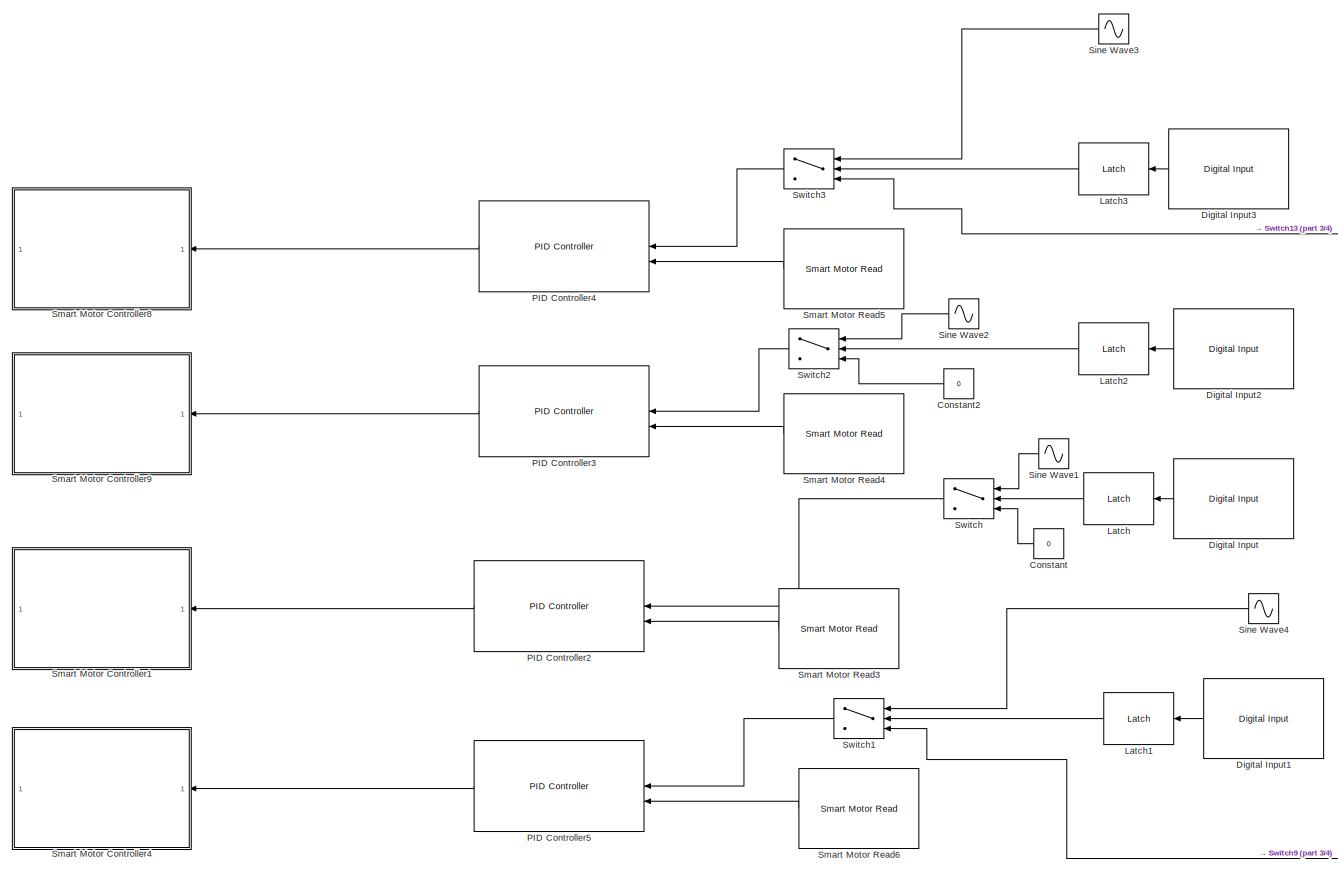
[diagram: root canvas - part 1/4, center side, full height]
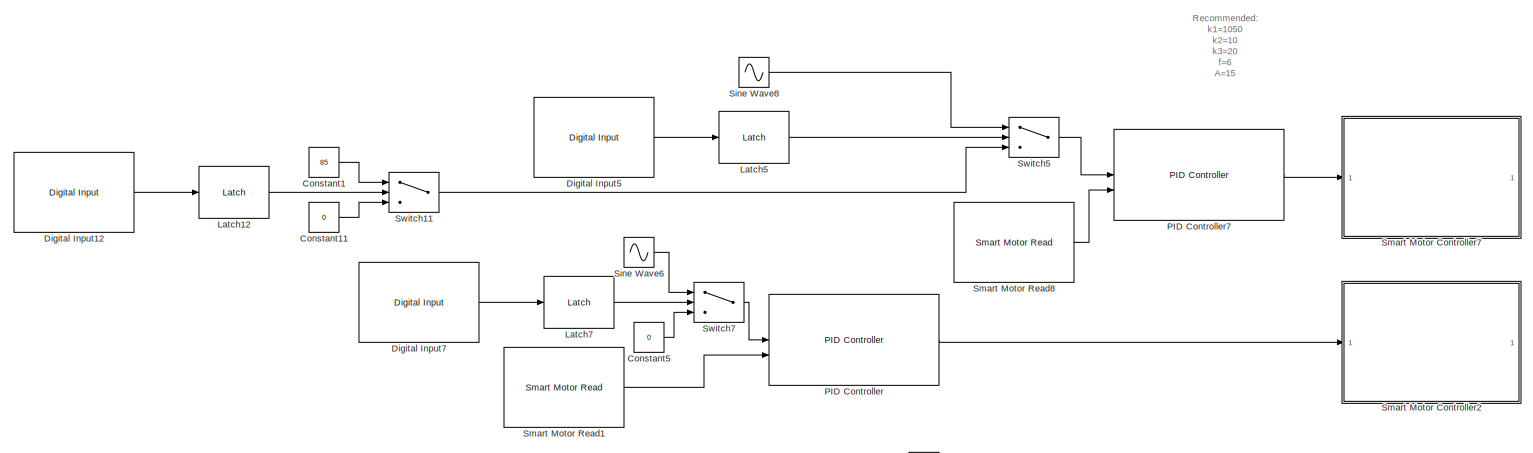
[diagram: root canvas - part 2/4, top left region]
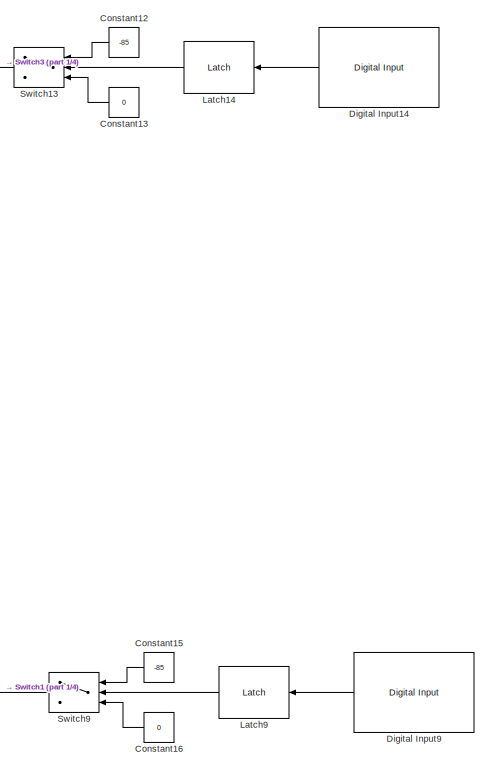
[diagram: root canvas - part 3/4, right side, full height]
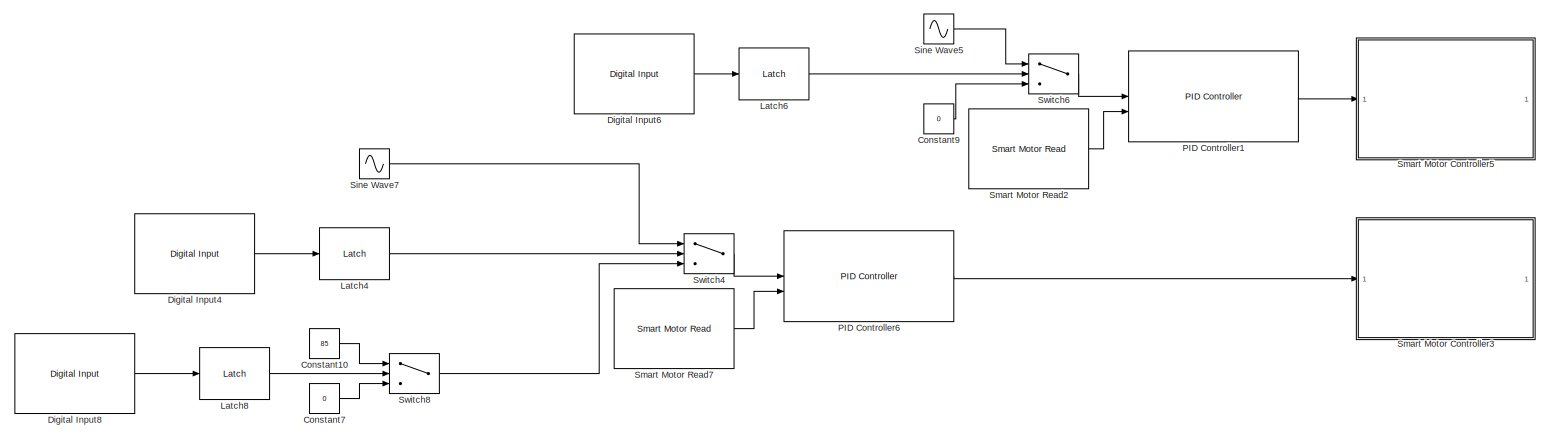
[diagram: root canvas - part 4/4, bottom left region]
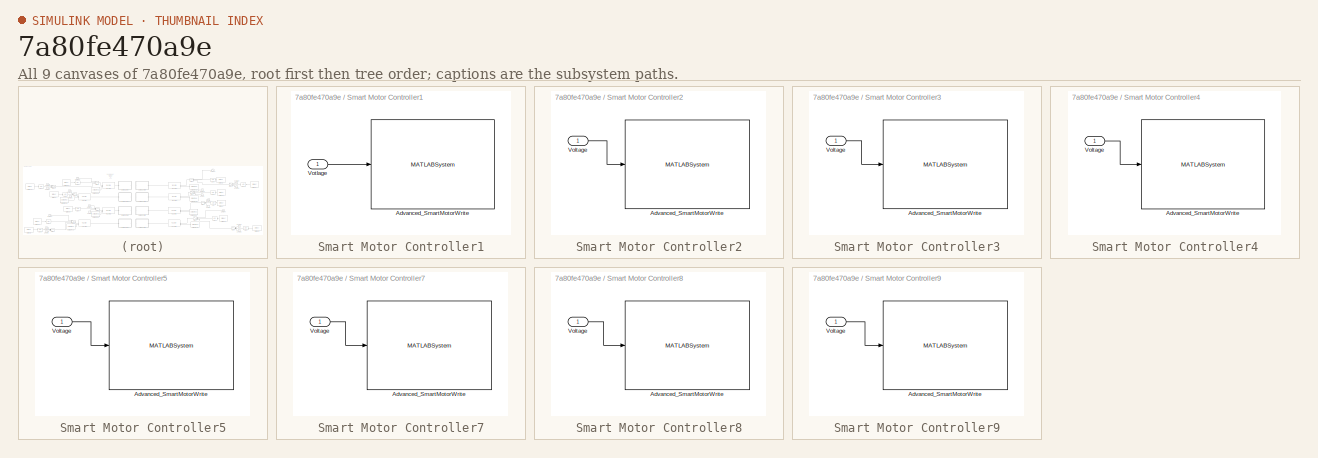
[diagram: thumbnail index - all 9 canvases of the model, root first then tree order]
MODEL slx_7a80fe470a9e
KIND model
CONFIG AbsTol = auto
CONFIG EnableMultiTasking = off
CONFIG FixedStep = auto
CONFIG MaxStep = auto
CONFIG MinStep = auto
CONFIG RelTol = 1e-3
CONFIG SampleTimeConstraint = Unconstrained
CONFIG SolverName = FixedStepAuto
CONFIG StartTime = 0.0
CONFIG StopTime = 10
BLOCK [Constant] Constant
  NameLocation = top
  Value = 0
BLOCK [Constant] Constant1
  Value = 85
BLOCK [Constant] Constant10
  Value = 85
BLOCK [Constant] Constant11
  Value = 0
BLOCK [Constant] Constant12
  NameLocation = top
  Value = -85
BLOCK [Constant] Constant13
  NameLocation = top
  Value = 0
BLOCK [Constant] Constant15
  NameLocation = top
  Value = -85
BLOCK [Constant] Constant16
  NameLocation = top
  Value = 0
BLOCK [Constant] Constant2
  NameLocation = top
  Value = 0
BLOCK [Constant] Constant5
  Value = 0
BLOCK [Constant] Constant7
  Value = 0
BLOCK [Constant] Constant9
  Value = 0
BLOCK [Reference] Digital Input  REF=vexv5lib/Sensors/Digital Input
  NameLocation = top
  SourceBlock = vexv5lib/Sensors/Digital Input
  SourceType = vexv5.DigitalInput
BLOCK [Reference] Digital Input1  REF=vexv5lib/Sensors/Digital Input
  NameLocation = top
  SourceBlock = vexv5lib/Sensors/Digital Input
  SourceType = vexv5.DigitalInput
BLOCK [Reference] Digital Input12  REF=vexv5lib/Sensors/Digital Input
  SourceBlock = vexv5lib/Sensors/Digital Input
  SourceType = vexv5.DigitalInput
BLOCK [Reference] Digital Input14  REF=vexv5lib/Sensors/Digital Input
  NameLocation = top
  SourceBlock = vexv5lib/Sensors/Digital Input
  SourceType = vexv5.DigitalInput
BLOCK [Reference] Digital Input2  REF=vexv5lib/Sensors/Digital Input
  NameLocation = top
  SourceBlock = vexv5lib/Sensors/Digital Input
  SourceType = vexv5.DigitalInput
BLOCK [Reference] Digital Input3  REF=vexv5lib/Sensors/Digital Input
  NameLocation = top
  SourceBlock = vexv5lib/Sensors/Digital Input
  SourceType = vexv5.DigitalInput
BLOCK [Reference] Digital Input4  REF=vexv5lib/Sensors/Digital Input
  SourceBlock = vexv5lib/Sensors/Digital Input
  SourceType = vexv5.DigitalInput
BLOCK [Reference] Digital Input5  REF=vexv5lib/Sensors/Digital Input
  SourceBlock = vexv5lib/Sensors/Digital Input
  SourceType = vexv5.DigitalInput
BLOCK [Reference] Digital Input6  REF=vexv5lib/Sensors/Digital Input
  SourceBlock = vexv5lib/Sensors/Digital Input
  SourceType = vexv5.DigitalInput
BLOCK [Reference] Digital Input7  REF=vexv5lib/Sensors/Digital Input
  SourceBlock = vexv5lib/Sensors/Digital Input
  SourceType = vexv5.DigitalInput
BLOCK [Reference] Digital Input8  REF=vexv5lib/Sensors/Digital Input
  SourceBlock = vexv5lib/Sensors/Digital Input
  SourceType = vexv5.DigitalInput
BLOCK [Reference] Digital Input9  REF=vexv5lib/Sensors/Digital Input
  NameLocation = top
  SourceBlock = vexv5lib/Sensors/Digital Input
  SourceType = vexv5.DigitalInput
BLOCK [Reference] Latch  REF=vexcommonlib/Latch
  LibrarySourceBlock = vexv5lib/Utilities/Latch
  NameLocation = top
  SourceBlock = vexcommonlib/Latch
  SourceType = Latch
BLOCK [Reference] Latch1  REF=vexcommonlib/Latch
  LibrarySourceBlock = vexv5lib/Utilities/Latch
  NameLocation = top
  SourceBlock = vexcommonlib/Latch
  SourceType = Latch
BLOCK [Reference] Latch12  REF=vexcommonlib/Latch
  LibrarySourceBlock = vexv5lib/Utilities/Latch
  SourceBlock = vexcommonlib/Latch
  SourceType = Latch
BLOCK [Reference] Latch14  REF=vexcommonlib/Latch
  LibrarySourceBlock = vexv5lib/Utilities/Latch
  NameLocation = top
  SourceBlock = vexcommonlib/Latch
  SourceType = Latch
BLOCK [Reference] Latch2  REF=vexcommonlib/Latch
  LibrarySourceBlock = vexv5lib/Utilities/Latch
  NameLocation = top
  SourceBlock = vexcommonlib/Latch
  SourceType = Latch
BLOCK [Reference] Latch3  REF=vexcommonlib/Latch
  LibrarySourceBlock = vexv5lib/Utilities/Latch
  NameLocation = top
  SourceBlock = vexcommonlib/Latch
  SourceType = Latch
BLOCK [Reference] Latch4  REF=vexcommonlib/Latch
  LibrarySourceBlock = vexv5lib/Utilities/Latch
  SourceBlock = vexcommonlib/Latch
  SourceType = Latch
BLOCK [Reference] Latch5  REF=vexcommonlib/Latch
  LibrarySourceBlock = vexv5lib/Utilities/Latch
  SourceBlock = vexcommonlib/Latch
  SourceType = Latch
BLOCK [Reference] Latch6  REF=vexcommonlib/Latch
  LibrarySourceBlock = vexv5lib/Utilities/Latch
  SourceBlock = vexcommonlib/Latch
  SourceType = Latch
BLOCK [Reference] Latch7  REF=vexcommonlib/Latch
  LibrarySourceBlock = vexv5lib/Utilities/Latch
  SourceBlock = vexcommonlib/Latch
  SourceType = Latch
BLOCK [Reference] Latch8  REF=vexcommonlib/Latch
  LibrarySourceBlock = vexv5lib/Utilities/Latch
  SourceBlock = vexcommonlib/Latch
  SourceType = Latch
BLOCK [Reference] Latch9  REF=vexcommonlib/Latch
  LibrarySourceBlock = vexv5lib/Utilities/Latch
  NameLocation = top
  SourceBlock = vexcommonlib/Latch
  SourceType = Latch
BLOCK [Reference] PID Controller  REF=Vex_V5_Simulink_Expansion/Core Blocks/PID Controller
  SourceBlock = Vex_V5_Simulink_Expansion/Core Blocks/PID Controller
  SourceType = PID Controller
BLOCK [Reference] PID Controller1  REF=Vex_V5_Simulink_Expansion/Core Blocks/PID Controller
  SourceBlock = Vex_V5_Simulink_Expansion/Core Blocks/PID Controller
  SourceType = PID Controller
BLOCK [Reference] PID Controller2  REF=Vex_V5_Simulink_Expansion/Core Blocks/PID Controller
  NameLocation = top
  SourceBlock = Vex_V5_Simulink_Expansion/Core Blocks/PID Controller
  SourceType = PID Controller
BLOCK [Reference] PID Controller3  REF=Vex_V5_Simulink_Expansion/Core Blocks/PID Controller
  NameLocation = top
  SourceBlock = Vex_V5_Simulink_Expansion/Core Blocks/PID Controller
  SourceType = PID Controller
BLOCK [Reference] PID Controller4  REF=Vex_V5_Simulink_Expansion/Core Blocks/PID Controller
  NameLocation = top
  SourceBlock = Vex_V5_Simulink_Expansion/Core Blocks/PID Controller
  SourceType = PID Controller
BLOCK [Reference] PID Controller5  REF=Vex_V5_Simulink_Expansion/Core Blocks/PID Controller
  NameLocation = top
  SourceBlock = Vex_V5_Simulink_Expansion/Core Blocks/PID Controller
  SourceType = PID Controller
BLOCK [Reference] PID Controller6  REF=Vex_V5_Simulink_Expansion/Core Blocks/PID Controller
  SourceBlock = Vex_V5_Simulink_Expansion/Core Blocks/PID Controller
  SourceType = PID Controller
BLOCK [Reference] PID Controller7  REF=Vex_V5_Simulink_Expansion/Core Blocks/PID Controller
  SourceBlock = Vex_V5_Simulink_Expansion/Core Blocks/PID Controller
  SourceType = PID Controller
BLOCK [Sin] Sine Wave1
  Amplitude = A
  Bias = A/2
  Frequency = f
  NameLocation = top
  Phase = -f/4
  SampleTime = 0.001
BLOCK [Sin] Sine Wave2
  Amplitude = A
  Bias = A/2
  Frequency = f
  NameLocation = top
  Phase = -f/4
  SampleTime = 0.001
BLOCK [Sin] Sine Wave3
  Amplitude = B
  Bias = -85
  Frequency = f
  NameLocation = top
  Phase = -f/2
  SampleTime = 0.001
BLOCK [Sin] Sine Wave4
  Amplitude = -B
  Bias = -85
  Frequency = f
  NameLocation = top
  Phase = -f/2
  SampleTime = 0.001
BLOCK [Sin] Sine Wave5
  Amplitude = -A
  Bias = -A/2
  Frequency = f
  Phase = -3*f/4
  SampleTime = 0.001
BLOCK [Sin] Sine Wave6
  Amplitude = A
  Bias = A/2
  Frequency = f
  Phase = -f/4
  SampleTime = 0.001
BLOCK [Sin] Sine Wave7
  Amplitude = B
  Bias = 85
  Frequency = f
  SampleTime = 0.001
BLOCK [Sin] Sine Wave8
  Amplitude = B
  Bias = 85
  Frequency = f
  Phase = -f/2
  SampleTime = 0.001
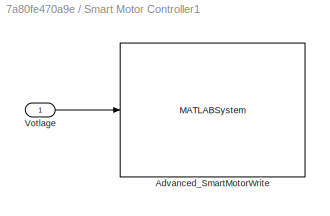
BLOCK [SubSystem] Smart Motor Controller1
  AncestorBlock = Vex_V5_Simulink_Expansion/Core Blocks/Smart Motor Controller
BLOCK [MATLABSystem] Smart Motor Controller1/Advanced_SmartMotorWrite
  MaskDisplay = color('white');\nplot([100,100,100,100]*1,[100,100,100,100]*1);\nplot([100,100,100,100]*0,[100,100,100,100]*0);\ncolor('black');\nimage(fullfile(codertarget.vexv5.internal.getSpPkgRootDir, 'resources', 'vex-v5-motor2.png'),'center');\npatch([0.8, 0.8, 1, 1], [0.82857, 1, 1, 0.82857], [1, 1, 1]);\ncolor('blue');\ntext(99, 92, 'VEX V5 ', 'horizontalAlignment', 'right');\ncolor('black');\ntext(62,12,'Port: 12...<+72ch>
  MaskType = Advanced_SmartMotorWrite
  MotorBrakeMode = Coast
  OperationMode = Advanced Control
  System = Advanced_SmartMotorWrite
  motorPort = 12
  scaleFactor = 36:1
BLOCK [Inport] Smart Motor Controller1/Votlage
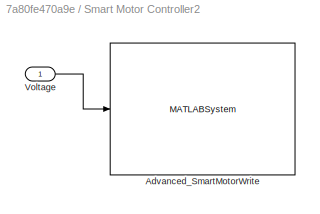
BLOCK [SubSystem] Smart Motor Controller2
  AncestorBlock = Vex_V5_Simulink_Expansion/Core Blocks/Smart Motor Controller
  NameLocation = top
BLOCK [MATLABSystem] Smart Motor Controller2/Advanced_SmartMotorWrite
  MaskDisplay = color('white');\nplot([100,100,100,100]*1,[100,100,100,100]*1);\nplot([100,100,100,100]*0,[100,100,100,100]*0);\ncolor('black');\nimage(fullfile(codertarget.vexv5.internal.getSpPkgRootDir, 'resources', 'vex-v5-motor2.png'),'center');\npatch([0.8, 0.8, 1, 1], [0.82857, 1, 1, 0.82857], [1, 1, 1]);\ncolor('blue');\ntext(99, 92, 'VEX V5 ', 'horizontalAlignment', 'right');\ncolor('black');\ntext(62,12,'Port: 9'...<+71ch>
  MaskType = Advanced_SmartMotorWrite
  MotorBrakeMode = Coast
  OperationMode = Advanced Control
  System = Advanced_SmartMotorWrite
  motorPort = 9
  scaleFactor = 36:1
BLOCK [Inport] Smart Motor Controller2/Voltage
BLOCK [SubSystem] Smart Motor Controller3
  AncestorBlock = Vex_V5_Simulink_Expansion/Core Blocks/Smart Motor Controller
  NameLocation = top
BLOCK [MATLABSystem] Smart Motor Controller3/Advanced_SmartMotorWrite
  MaskDisplay = color('white');\nplot([100,100,100,100]*1,[100,100,100,100]*1);\nplot([100,100,100,100]*0,[100,100,100,100]*0);\ncolor('black');\nimage(fullfile(codertarget.vexv5.internal.getSpPkgRootDir, 'resources', 'vex-v5-motor2.png'),'center');\npatch([0.8, 0.8, 1, 1], [0.82857, 1, 1, 0.82857], [1, 1, 1]);\ncolor('blue');\ntext(99, 92, 'VEX V5 ', 'horizontalAlignment', 'right');\ncolor('black');\ntext(62,12,'Port: 1'...<+71ch>
  MaskType = Advanced_SmartMotorWrite
  MotorBrakeMode = Coast
  OperationMode = Advanced Control
  System = Advanced_SmartMotorWrite
  motorPort = 1
  scaleFactor = 36:1
BLOCK [Inport] Smart Motor Controller3/Voltage
BLOCK [SubSystem] Smart Motor Controller4
  AncestorBlock = Vex_V5_Simulink_Expansion/Core Blocks/Smart Motor Controller
BLOCK [MATLABSystem] Smart Motor Controller4/Advanced_SmartMotorWrite
  MaskDisplay = color('white');\nplot([100,100,100,100]*1,[100,100,100,100]*1);\nplot([100,100,100,100]*0,[100,100,100,100]*0);\ncolor('black');\nimage(fullfile(codertarget.vexv5.internal.getSpPkgRootDir, 'resources', 'vex-v5-motor2.png'),'center');\npatch([0.8, 0.8, 1, 1], [0.82857, 1, 1, 0.82857], [1, 1, 1]);\ncolor('blue');\ntext(99, 92, 'VEX V5 ', 'horizontalAlignment', 'right');\ncolor('black');\ntext(62,12,'Port: 11...<+72ch>
  MaskType = Advanced_SmartMotorWrite
  MotorBrakeMode = Coast
  OperationMode = Advanced Control
  System = Advanced_SmartMotorWrite
  motorPort = 11
  scaleFactor = 36:1
BLOCK [Inport] Smart Motor Controller4/Voltage
BLOCK [SubSystem] Smart Motor Controller5
  AncestorBlock = Vex_V5_Simulink_Expansion/Core Blocks/Smart Motor Controller
  NameLocation = top
BLOCK [MATLABSystem] Smart Motor Controller5/Advanced_SmartMotorWrite
  MaskDisplay = color('white');\nplot([100,100,100,100]*1,[100,100,100,100]*1);\nplot([100,100,100,100]*0,[100,100,100,100]*0);\ncolor('black');\nimage(fullfile(codertarget.vexv5.internal.getSpPkgRootDir, 'resources', 'vex-v5-motor2.png'),'center');\npatch([0.8, 0.8, 1, 1], [0.82857, 1, 1, 0.82857], [1, 1, 1]);\ncolor('blue');\ntext(99, 92, 'VEX V5 ', 'horizontalAlignment', 'right');\ncolor('black');\ntext(62,12,'Port: 2'...<+71ch>
  MaskType = Advanced_SmartMotorWrite
  MotorBrakeMode = Coast
  OperationMode = Advanced Control
  System = Advanced_SmartMotorWrite
  motorPort = 2
  scaleFactor = 36:1
BLOCK [Inport] Smart Motor Controller5/Voltage
BLOCK [SubSystem] Smart Motor Controller7
  AncestorBlock = Vex_V5_Simulink_Expansion/Core Blocks/Smart Motor Controller
  NameLocation = top
BLOCK [MATLABSystem] Smart Motor Controller7/Advanced_SmartMotorWrite
  MaskDisplay = color('white');\nplot([100,100,100,100]*1,[100,100,100,100]*1);\nplot([100,100,100,100]*0,[100,100,100,100]*0);\ncolor('black');\nimage(fullfile(codertarget.vexv5.internal.getSpPkgRootDir, 'resources', 'vex-v5-motor2.png'),'center');\npatch([0.8, 0.8, 1, 1], [0.82857, 1, 1, 0.82857], [1, 1, 1]);\ncolor('blue');\ntext(99, 92, 'VEX V5 ', 'horizontalAlignment', 'right');\ncolor('black');\ntext(62,12,'Port: 10...<+72ch>
  MaskType = Advanced_SmartMotorWrite
  MotorBrakeMode = Coast
  OperationMode = Advanced Control
  System = Advanced_SmartMotorWrite
  motorPort = 10
  scaleFactor = 36:1
BLOCK [Inport] Smart Motor Controller7/Voltage
BLOCK [SubSystem] Smart Motor Controller8
  AncestorBlock = Vex_V5_Simulink_Expansion/Core Blocks/Smart Motor Controller
BLOCK [MATLABSystem] Smart Motor Controller8/Advanced_SmartMotorWrite
  MaskDisplay = color('white');\nplot([100,100,100,100]*1,[100,100,100,100]*1);\nplot([100,100,100,100]*0,[100,100,100,100]*0);\ncolor('black');\nimage(fullfile(codertarget.vexv5.internal.getSpPkgRootDir, 'resources', 'vex-v5-motor2.png'),'center');\npatch([0.8, 0.8, 1, 1], [0.82857, 1, 1, 0.82857], [1, 1, 1]);\ncolor('blue');\ntext(99, 92, 'VEX V5 ', 'horizontalAlignment', 'right');\ncolor('black');\ntext(62,12,'Port: 20...<+72ch>
  MaskType = Advanced_SmartMotorWrite
  MotorBrakeMode = Coast
  OperationMode = Advanced Control
  System = Advanced_SmartMotorWrite
  motorPort = 20
  scaleFactor = 36:1
BLOCK [Inport] Smart Motor Controller8/Voltage
BLOCK [SubSystem] Smart Motor Controller9
  AncestorBlock = Vex_V5_Simulink_Expansion/Core Blocks/Smart Motor Controller
BLOCK [MATLABSystem] Smart Motor Controller9/Advanced_SmartMotorWrite
  MaskDisplay = color('white');\nplot([100,100,100,100]*1,[100,100,100,100]*1);\nplot([100,100,100,100]*0,[100,100,100,100]*0);\ncolor('black');\nimage(fullfile(codertarget.vexv5.internal.getSpPkgRootDir, 'resources', 'vex-v5-motor2.png'),'center');\npatch([0.8, 0.8, 1, 1], [0.82857, 1, 1, 0.82857], [1, 1, 1]);\ncolor('blue');\ntext(99, 92, 'VEX V5 ', 'horizontalAlignment', 'right');\ncolor('black');\ntext(62,12,'Port: 19...<+72ch>
  MaskType = Advanced_SmartMotorWrite
  MotorBrakeMode = Coast
  OperationMode = Advanced Control
  System = Advanced_SmartMotorWrite
  motorPort = 19
  scaleFactor = 36:1
BLOCK [Inport] Smart Motor Controller9/Voltage
BLOCK [Reference] Smart Motor Read1  REF=vexv5lib/Sensors/Smart Motor Read
  SourceBlock = vexv5lib/Sensors/Smart Motor Read
  SourceType = vexv5.SmartMotorRead
BLOCK [Reference] Smart Motor Read2  REF=vexv5lib/Sensors/Smart Motor Read
  SourceBlock = vexv5lib/Sensors/Smart Motor Read
  SourceType = vexv5.SmartMotorRead
BLOCK [Reference] Smart Motor Read3  REF=vexv5lib/Sensors/Smart Motor Read
  NameLocation = top
  SourceBlock = vexv5lib/Sensors/Smart Motor Read
  SourceType = vexv5.SmartMotorRead
BLOCK [Reference] Smart Motor Read4  REF=vexv5lib/Sensors/Smart Motor Read
  NameLocation = top
  SourceBlock = vexv5lib/Sensors/Smart Motor Read
  SourceType = vexv5.SmartMotorRead
BLOCK [Reference] Smart Motor Read5  REF=vexv5lib/Sensors/Smart Motor Read
  NameLocation = top
  SourceBlock = vexv5lib/Sensors/Smart Motor Read
  SourceType = vexv5.SmartMotorRead
BLOCK [Reference] Smart Motor Read6  REF=vexv5lib/Sensors/Smart Motor Read
  NameLocation = top
  SourceBlock = vexv5lib/Sensors/Smart Motor Read
  SourceType = vexv5.SmartMotorRead
BLOCK [Reference] Smart Motor Read7  REF=vexv5lib/Sensors/Smart Motor Read
  SourceBlock = vexv5lib/Sensors/Smart Motor Read
  SourceType = vexv5.SmartMotorRead
BLOCK [Reference] Smart Motor Read8  REF=vexv5lib/Sensors/Smart Motor Read
  SourceBlock = vexv5lib/Sensors/Smart Motor Read
  SourceType = vexv5.SmartMotorRead
BLOCK [Switch] Switch
  Criteria = u2 > Threshold
  InputSameDT = off
  NameLocation = top
  SaturateOnIntegerOverflow = off
BLOCK [Switch] Switch1
  Criteria = u2 ~= 0
  InputSameDT = off
  NameLocation = top
  SaturateOnIntegerOverflow = off
BLOCK [Switch] Switch11
  Criteria = u2 > Threshold
  InputSameDT = off
  SaturateOnIntegerOverflow = off
BLOCK [Switch] Switch13
  Criteria = u2 > Threshold
  InputSameDT = off
  NameLocation = top
  SaturateOnIntegerOverflow = off
BLOCK [Switch] Switch2
  Criteria = u2 > Threshold
  InputSameDT = off
  NameLocation = top
  SaturateOnIntegerOverflow = off
BLOCK [Switch] Switch3
  Criteria = u2 > Threshold
  InputSameDT = off
  NameLocation = top
  SaturateOnIntegerOverflow = off
BLOCK [Switch] Switch4
  Criteria = u2 ~= 0
  InputSameDT = off
  SaturateOnIntegerOverflow = off
BLOCK [Switch] Switch5
  Criteria = u2 ~= 0
  InputSameDT = off
  SaturateOnIntegerOverflow = off
BLOCK [Switch] Switch6
  Criteria = u2 > Threshold
  InputSameDT = off
  SaturateOnIntegerOverflow = off
BLOCK [Switch] Switch7
  Criteria = u2 > Threshold
  InputSameDT = off
  SaturateOnIntegerOverflow = off
BLOCK [Switch] Switch8
  Criteria = u2 > Threshold
  InputSameDT = off
  SaturateOnIntegerOverflow = off
BLOCK [Switch] Switch9
  Criteria = u2 > Threshold
  InputSameDT = off
  NameLocation = top
  SaturateOnIntegerOverflow = off
ANNOTATION (root): Recommended: k1=1050 k2=10 k3=20 f=6 A=15 B=15
LINE Constant10:1 -> Switch8:1
LINE Constant11:1 -> Switch11:3
LINE Constant12:1 -> Switch13:1
LINE Constant13:1 -> Switch13:3
LINE Constant15:1 -> Switch9:1
LINE Constant16:1 -> Switch9:3
LINE Constant1:1 -> Switch11:1
LINE Constant2:1 -> Switch2:3
LINE Constant5:1 -> Switch7:3
LINE Constant7:1 -> Switch8:3
LINE Constant9:1 -> Switch6:3
LINE Constant:1 -> Switch:3
LINE Digital Input12:1 -> Latch12:1
LINE Digital Input14:1 -> Latch14:1
LINE Digital Input1:1 -> Latch1:1
LINE Digital Input2:1 -> Latch2:1
LINE Digital Input3:1 -> Latch3:1
LINE Digital Input4:1 -> Latch4:1
LINE Digital Input5:1 -> Latch5:1
LINE Digital Input6:1 -> Latch6:1
LINE Digital Input7:1 -> Latch7:1
LINE Digital Input8:1 -> Latch8:1
LINE Digital Input9:1 -> Latch9:1
LINE Digital Input:1 -> Latch:1
LINE Latch12:1 -> Switch11:2
LINE Latch14:1 -> Switch13:2
LINE Latch1:1 -> Switch1:2
LINE Latch2:1 -> Switch2:2
LINE Latch3:1 -> Switch3:2
LINE Latch4:1 -> Switch4:2
LINE Latch5:1 -> Switch5:2
LINE Latch6:1 -> Switch6:2
LINE Latch7:1 -> Switch7:2
LINE Latch8:1 -> Switch8:2
LINE Latch9:1 -> Switch9:2
LINE Latch:1 -> Switch:2
LINE PID Controller1:1 -> Smart Motor Controller5:1
LINE PID Controller2:1 -> Smart Motor Controller1:1
LINE PID Controller3:1 -> Smart Motor Controller9:1
LINE PID Controller4:1 -> Smart Motor Controller8:1
LINE PID Controller5:1 -> Smart Motor Controller4:1
LINE PID Controller6:1 -> Smart Motor Controller3:1
LINE PID Controller7:1 -> Smart Motor Controller7:1
LINE PID Controller:1 -> Smart Motor Controller2:1
LINE Sine Wave1:1 -> Switch:1
LINE Sine Wave2:1 -> Switch2:1
LINE Sine Wave3:1 -> Switch3:1
LINE Sine Wave4:1 -> Switch1:1
LINE Sine Wave5:1 -> Switch6:1
LINE Sine Wave6:1 -> Switch7:1
LINE Sine Wave7:1 -> Switch4:1
LINE Sine Wave8:1 -> Switch5:1
LINE Smart Motor Read1:1 -> PID Controller:2
LINE Smart Motor Read2:1 -> PID Controller1:2
LINE Smart Motor Read3:1 -> PID Controller2:2
LINE Smart Motor Read4:1 -> PID Controller3:2
LINE Smart Motor Read5:1 -> PID Controller4:2
LINE Smart Motor Read6:1 -> PID Controller5:2
LINE Smart Motor Read7:1 -> PID Controller6:2
LINE Smart Motor Read8:1 -> PID Controller7:2
LINE Switch11:1 -> Switch5:3
LINE Switch13:1 -> Switch3:3
LINE Switch1:1 -> PID Controller5:1
LINE Switch2:1 -> PID Controller3:1
LINE Switch3:1 -> PID Controller4:1
LINE Switch4:1 -> PID Controller6:1
LINE Switch5:1 -> PID Controller7:1
LINE Switch6:1 -> PID Controller1:1
LINE Switch7:1 -> PID Controller:1
LINE Switch8:1 -> Switch4:3
LINE Switch9:1 -> Switch1:3
LINE Switch:1 -> PID Controller2:1
